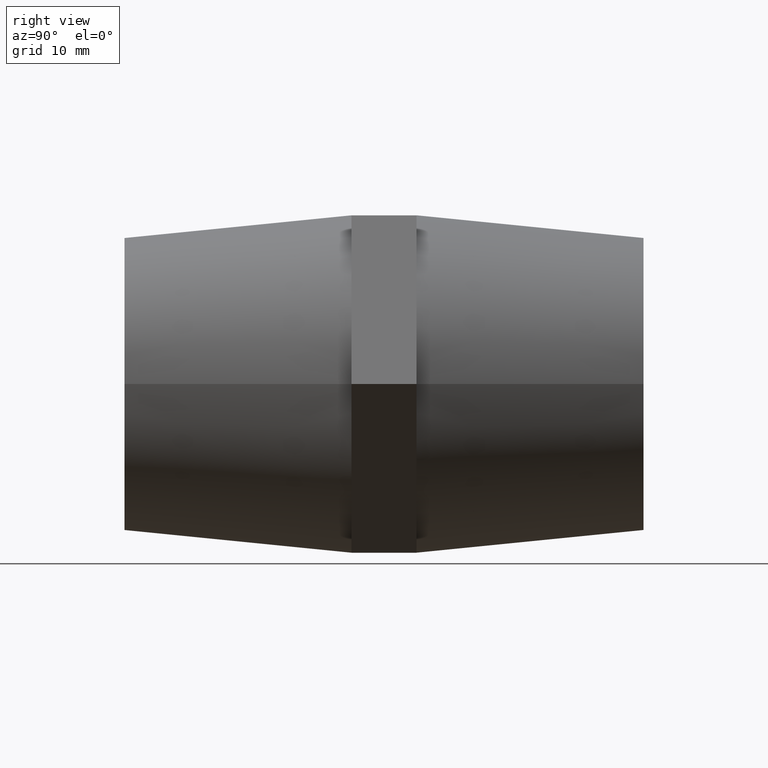
[diagram: clean part render]
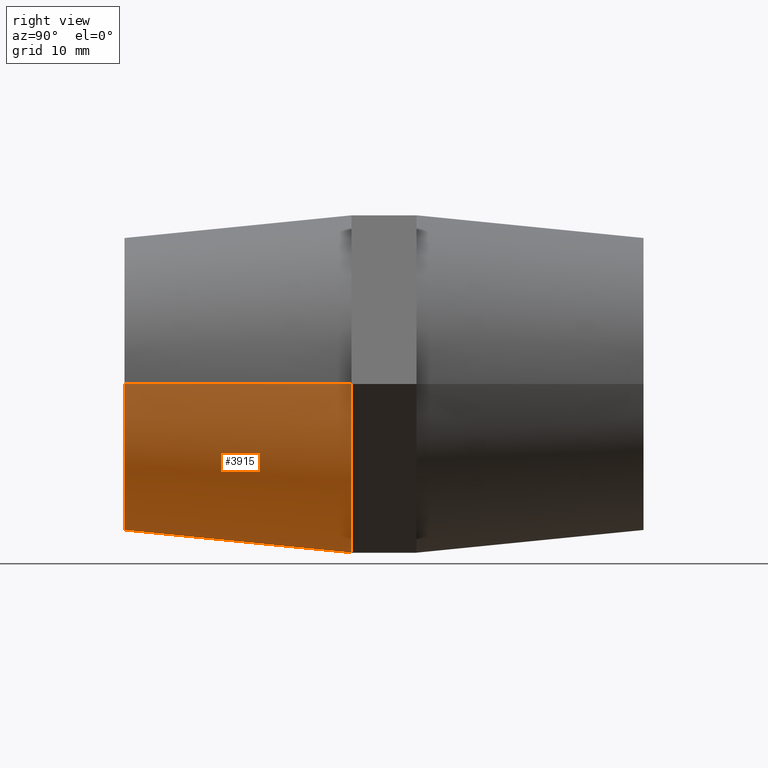
[diagram: same view with one face highlighted and labeled with its STEP entity id]
A machine part, right view. The second image highlights one B-rep face of the part: STEP entity #3915.
In plain terms, the highlighted conical surface has half-angle 5.711 deg.
Its self-contained STEP definition (entity closure, byte-faithful):
#8 = CIRCLE ( 'NONE', #85, 26.00000000000000000 ) ;
#53 = CARTESIAN_POINT ( 'NONE',  ( -25.99999999999999300, -5.000000000000003600, 0.0000000000000000000 ) ) ;
#57 = CARTESIAN_POINT ( 'NONE',  ( 22.51666049839540000, -5.000000000000000000, -13.00000000000000000 ) ) ;
#68 = VERTEX_POINT ( 'NONE', #2736 ) ;
#85 = AXIS2_PLACEMENT_3D ( 'NONE', #1181, #3552, #3586 ) ;
#162 = LINE ( 'NONE', #53, #3135 ) ;
#200 = ORIENTED_EDGE ( 'NONE', *, *, #3867, .T. ) ;
#219 = DIRECTION ( 'NONE',  ( 0.0000000000000000000, 0.0000000000000000000, 1.000000000000000000 ) ) ;
#407 = EDGE_CURVE ( 'NONE', #1559, #1037, #1976, .T. ) ;
#418 = AXIS2_PLACEMENT_3D ( 'NONE', #2646, #3319, #1461 ) ;
#476 = CARTESIAN_POINT ( 'NONE',  ( -22.49999999999998900, -40.00000000000000000, 0.0000000000000000000 ) ) ;
#535 = CARTESIAN_POINT ( 'NONE',  ( 9.797174393178830800E-015, -40.00000000000000000, 0.0000000000000000000 ) ) ;
#677 = CIRCLE ( 'NONE', #879, 26.00000000000000000 ) ;
#843 = ORIENTED_EDGE ( 'NONE', *, *, #3923, .T. ) ;
#871 = DIRECTION ( 'NONE',  ( 0.0000000000000000000, 1.000000000000000000, 0.0000000000000000000 ) ) ;
#879 = AXIS2_PLACEMENT_3D ( 'NONE', #3272, #1442, #219 ) ;
#887 = CARTESIAN_POINT ( 'NONE',  ( 5.510910596163089600E-015, -5.000000000000000000, 3.184081677783139900E-016 ) ) ;
#905 = ORIENTED_EDGE ( 'NONE', *, *, #2160, .F. ) ;
#964 = CIRCLE ( 'NONE', #2569, 26.00000000000000000 ) ;
#981 = ORIENTED_EDGE ( 'NONE', *, *, #3153, .F. ) ;
#1037 = VERTEX_POINT ( 'NONE', #1703 ) ;
#1131 = EDGE_LOOP ( 'NONE', ( #2191, #200, #843, #905, #1295, #2333, #981 ) ) ;
#1181 = CARTESIAN_POINT ( 'NONE',  ( 5.510910596163089600E-015, -5.000000000000000000, 3.184081677783139900E-016 ) ) ;
#1193 = AXIS2_PLACEMENT_3D ( 'NONE', #535, #2113, #1687 ) ;
#1295 = ORIENTED_EDGE ( 'NONE', *, *, #3041, .F. ) ;
#1442 = DIRECTION ( 'NONE',  ( 0.0000000000000000000, 1.000000000000000000, 0.0000000000000000000 ) ) ;
#1461 = DIRECTION ( 'NONE',  ( 0.0000000000000000000, 0.0000000000000000000, 1.000000000000000000 ) ) ;
#1559 = VERTEX_POINT ( 'NONE', #2585 ) ;
#1687 = DIRECTION ( 'NONE',  ( -1.000000000000000000, 0.0000000000000000000, 0.0000000000000000000 ) ) ;
#1690 = CARTESIAN_POINT ( 'NONE',  ( 26.00000000000000700, -4.999999999999996400, 3.184081677783118200E-015 ) ) ;
#1703 = CARTESIAN_POINT ( 'NONE',  ( 26.00000000000000700, -5.000000000000000000, 3.184081677783118200E-015 ) ) ;
#1734 = CARTESIAN_POINT ( 'NONE',  ( 5.510910596163089600E-015, -5.000000000000000000, -26.00000000000000000 ) ) ;
#1840 = VECTOR ( 'NONE', #3850, 1000.000000000000200 ) ;
#1976 = LINE ( 'NONE', #1690, #1840 ) ;
#1991 = VERTEX_POINT ( 'NONE', #476 ) ;
#2113 = DIRECTION ( 'NONE',  ( -1.224646799147352000E-016, 1.000000000000000000, 0.0000000000000000000 ) ) ;
#2160 = EDGE_CURVE ( 'NONE', #68, #2711, #677, .T. ) ;
#2182 = DIRECTION ( 'NONE',  ( -1.000000000000000000, -1.334402673828313100E-016, 0.0000000000000000000 ) ) ;
#2191 = ORIENTED_EDGE ( 'NONE', *, *, #407, .F. ) ;
#2194 = DIRECTION ( 'NONE',  ( -0.09950371902099952600, 0.9950371902099890400, 0.0000000000000000000 ) ) ;
#2196 = VERTEX_POINT ( 'NONE', #1734 ) ;
#2333 = ORIENTED_EDGE ( 'NONE', *, *, #2615, .F. ) ;
#2438 = DIRECTION ( 'NONE',  ( -1.224646799147352000E-016, 1.000000000000000000, 0.0000000000000000000 ) ) ;
#2466 = DIRECTION ( 'NONE',  ( 0.0000000000000000000, 0.0000000000000000000, 1.000000000000000000 ) ) ;
#2569 = AXIS2_PLACEMENT_3D ( 'NONE', #887, #871, #2466 ) ;
#2585 = CARTESIAN_POINT ( 'NONE',  ( 22.50000000000001100, -40.00000000000000000, 2.969768487932331700E-015 ) ) ;
#2615 = EDGE_CURVE ( 'NONE', #3600, #2196, #964, .T. ) ;
#2637 = CIRCLE ( 'NONE', #418, 26.00000000000000000 ) ;
#2646 = CARTESIAN_POINT ( 'NONE',  ( 5.510910596163089600E-015, -5.000000000000000000, 3.184081677783139900E-016 ) ) ;
#2659 = CIRCLE ( 'NONE', #1193, 22.50000000000000000 ) ;
#2707 = CARTESIAN_POINT ( 'NONE',  ( -25.99999999999999300, -5.000000000000000000, 0.0000000000000000000 ) ) ;
#2711 = VERTEX_POINT ( 'NONE', #2707 ) ;
#2736 = CARTESIAN_POINT ( 'NONE',  ( -22.51666049839540000, -5.000000000000000000, -13.00000000000000000 ) ) ;
#2844 = FACE_OUTER_BOUND ( 'NONE', #1131, .T. ) ;
#3041 = EDGE_CURVE ( 'NONE', #2196, #68, #2637, .T. ) ;
#3135 = VECTOR ( 'NONE', #2194, 1000.000000000000200 ) ;
#3153 = EDGE_CURVE ( 'NONE', #1037, #3600, #8, .T. ) ;
#3272 = CARTESIAN_POINT ( 'NONE',  ( 5.510910596163089600E-015, -5.000000000000000000, 3.184081677783139900E-016 ) ) ;
#3319 = DIRECTION ( 'NONE',  ( 0.0000000000000000000, 1.000000000000000000, 0.0000000000000000000 ) ) ;
#3395 = CARTESIAN_POINT ( 'NONE',  ( 5.510910596163089600E-015, -5.000000000000000000, 0.0000000000000000000 ) ) ;
#3488 = AXIS2_PLACEMENT_3D ( 'NONE', #3395, #2438, #2182 ) ;
#3552 = DIRECTION ( 'NONE',  ( 0.0000000000000000000, 1.000000000000000000, 0.0000000000000000000 ) ) ;
#3586 = DIRECTION ( 'NONE',  ( 0.0000000000000000000, 0.0000000000000000000, 1.000000000000000000 ) ) ;
#3600 = VERTEX_POINT ( 'NONE', #57 ) ;
#3850 = DIRECTION ( 'NONE',  ( 0.09950371902099927600, 0.9950371902099890400, 1.218569110023245200E-017 ) ) ;
#3867 = EDGE_CURVE ( 'NONE', #1559, #1991, #2659, .T. ) ;
#3915 = ADVANCED_FACE ( 'NONE', ( #2844 ), #3965, .T. ) ;
#3923 = EDGE_CURVE ( 'NONE', #1991, #2711, #162, .T. ) ;
#3965 = CONICAL_SURFACE ( 'NONE', #3488, 26.00000000000000000, 0.09966865249116252400 ) ;